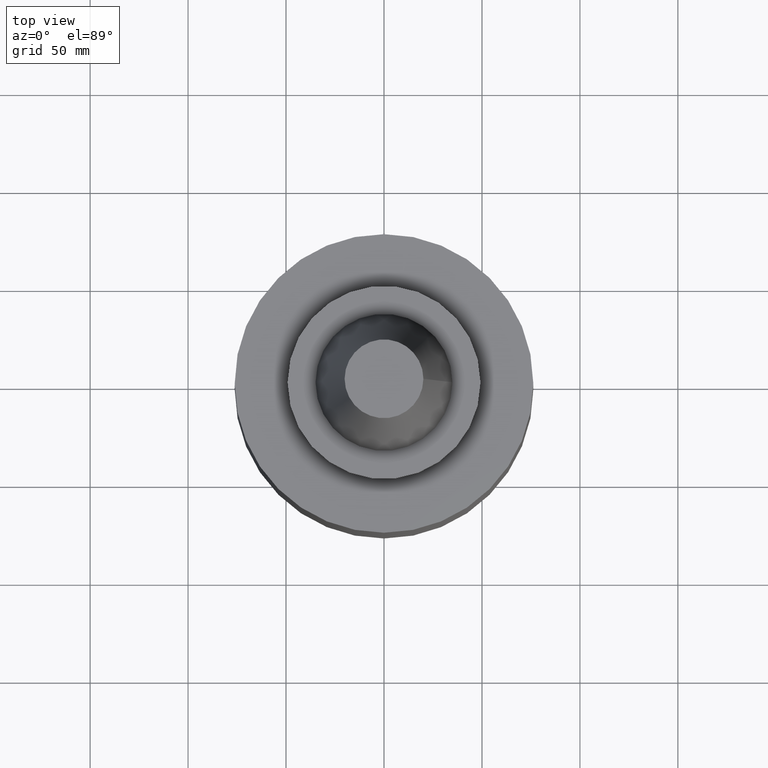
[diagram: clean part render]
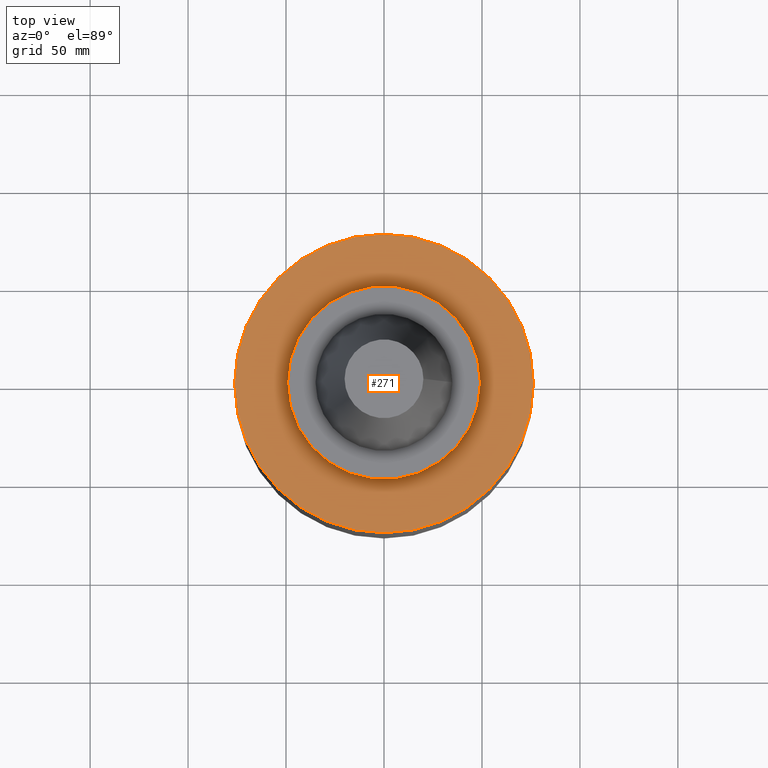
[diagram: same view with one face highlighted and labeled with its STEP entity id]
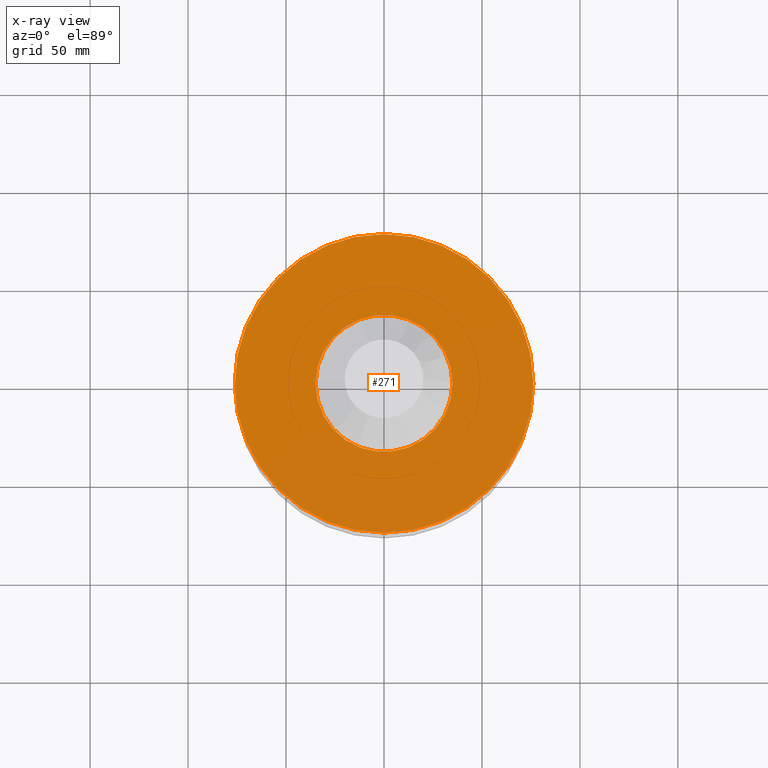
[diagram: x-ray of the same camera — body ghosted, the highlighted face saturated]
A machine part, top view. The second image highlights one B-rep face of the part: STEP entity #271.
The next image is the same camera in x-ray: the body ghosted, the highlighted face saturated — about 0% of this face is hidden behind the body in this view.
In plain terms, the highlighted planar face has unit normal (0, 0, -1).
Its self-contained STEP definition (entity closure, byte-faithful):
#3 = CARTESIAN_POINT ( 'NONE',  ( 76.20000000000000284, 0.000000000000000000, -35.00000000000000000 ) ) ;
#28 = AXIS2_PLACEMENT_3D ( 'NONE', #256, #107, #259 ) ;
#39 = CIRCLE ( 'NONE', #237, 76.20000000000000284 ) ;
#57 = CARTESIAN_POINT ( 'NONE',  ( 34.92499999999999716, 0.000000000000000000, -35.00000000000000000 ) ) ;
#63 = EDGE_CURVE ( 'NONE', #152, #152, #39, .T. ) ;
#73 = DIRECTION ( 'NONE',  ( -0.000000000000000000, -0.000000000000000000, 1.000000000000000000 ) ) ;
#88 = DIRECTION ( 'NONE',  ( 0.000000000000000000, 0.000000000000000000, -1.000000000000000000 ) ) ;
#95 = AXIS2_PLACEMENT_3D ( 'NONE', #299, #88, #236 ) ;
#98 = EDGE_CURVE ( 'NONE', #329, #329, #258, .T. ) ;
#107 = DIRECTION ( 'NONE',  ( -0.000000000000000000, -0.000000000000000000, 1.000000000000000000 ) ) ;
#123 = FACE_OUTER_BOUND ( 'NONE', #220, .T. ) ;
#152 = VERTEX_POINT ( 'NONE', #3 ) ;
#181 = ORIENTED_EDGE ( 'NONE', *, *, #98, .F. ) ;
#212 = PLANE ( 'NONE',  #95 ) ;
#216 = EDGE_LOOP ( 'NONE', ( #181 ) ) ;
#220 = EDGE_LOOP ( 'NONE', ( #244 ) ) ;
#222 = DIRECTION ( 'NONE',  ( 1.000000000000000000, 0.000000000000000000, 0.000000000000000000 ) ) ;
#236 = DIRECTION ( 'NONE',  ( -1.000000000000000000, 0.000000000000000000, -0.000000000000000000 ) ) ;
#237 = AXIS2_PLACEMENT_3D ( 'NONE', #340, #73, #222 ) ;
#244 = ORIENTED_EDGE ( 'NONE', *, *, #63, .T. ) ;
#256 = CARTESIAN_POINT ( 'NONE',  ( 0.000000000000000000, 0.000000000000000000, -35.00000000000000000 ) ) ;
#258 = CIRCLE ( 'NONE', #28, 34.92499999999999716 ) ;
#259 = DIRECTION ( 'NONE',  ( 1.000000000000000000, 0.000000000000000000, 0.000000000000000000 ) ) ;
#271 = ADVANCED_FACE ( 'NONE', ( #394, #123 ), #212, .F. ) ;
#299 = CARTESIAN_POINT ( 'NONE',  ( 0.000000000000000000, 0.000000000000000000, -35.00000000000000000 ) ) ;
#329 = VERTEX_POINT ( 'NONE', #57 ) ;
#340 = CARTESIAN_POINT ( 'NONE',  ( 0.000000000000000000, 0.000000000000000000, -35.00000000000000000 ) ) ;
#394 = FACE_BOUND ( 'NONE', #216, .T. ) ;